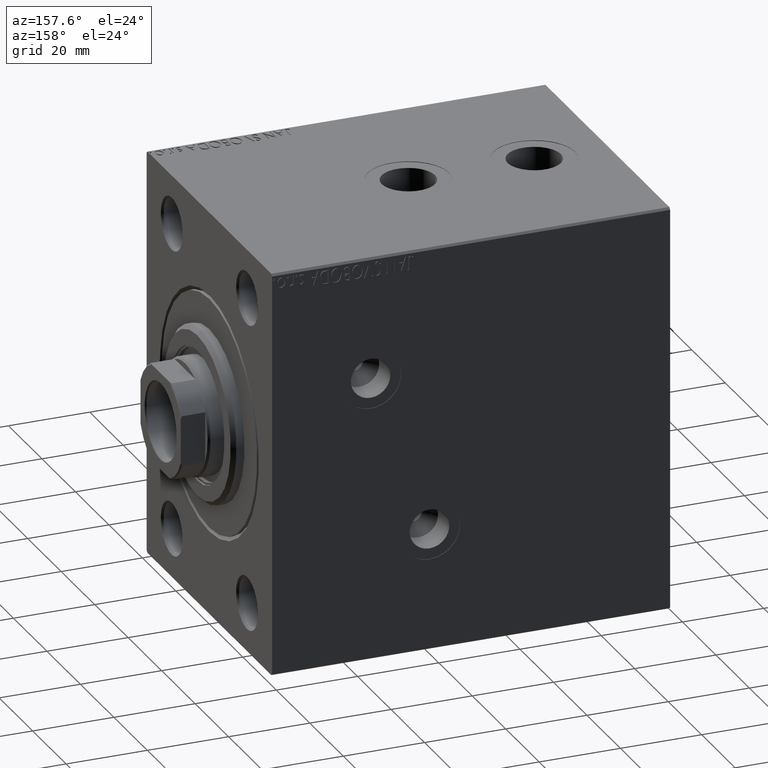
[diagram: clean part render]
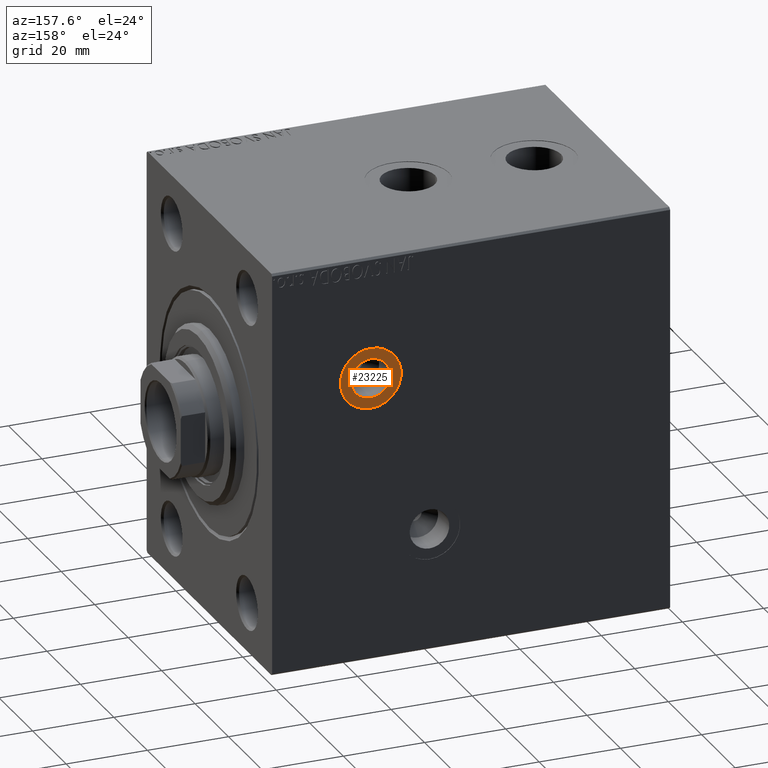
[diagram: same view with one face highlighted and labeled with its STEP entity id]
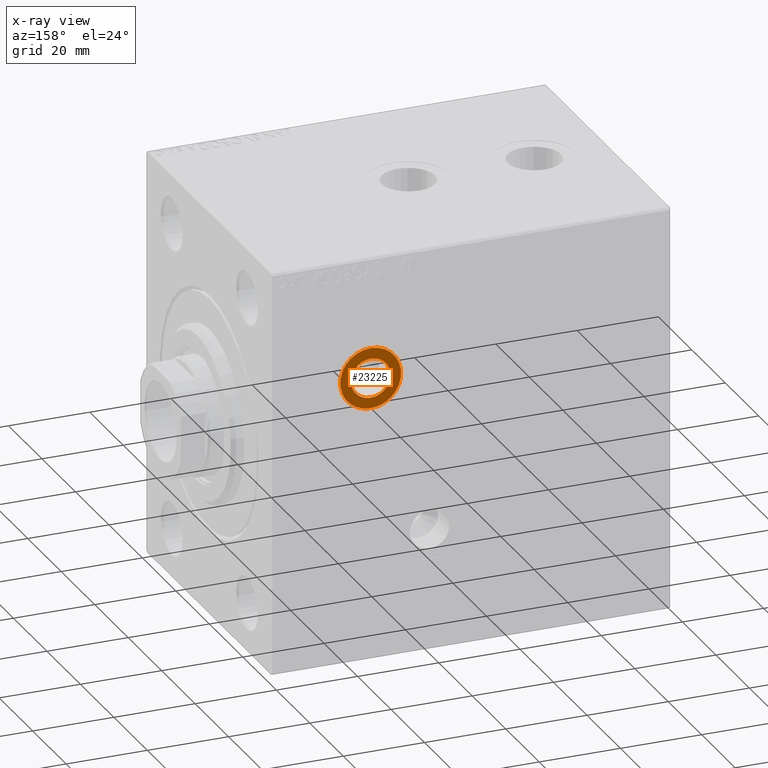
[diagram: x-ray of the same camera — body ghosted, the highlighted face saturated]
A machine part, auxiliary view. The second image highlights one B-rep face of the part: STEP entity #23225.
The next image is the same camera in x-ray: the body ghosted, the highlighted face saturated — about 0% of this face is hidden behind the body in this view.
In plain terms, the highlighted planar face has unit normal (-0, 1, -0).
Its self-contained STEP definition (entity closure, byte-faithful):
#463 = EDGE_LOOP ( 'NONE', ( #27956, #31067 ) ) ;
#1555 = DIRECTION ( 'NONE',  ( 0.000000000000000000, 0.000000000000000000, 1.000000000000000000 ) ) ;
#1837 = ORIENTED_EDGE ( 'NONE', *, *, #44630, .T. ) ;
#2612 = CARTESIAN_POINT ( 'NONE',  ( 24.30000000000000071, 37.39999999999999147, -27.49999999999998579 ) ) ;
#3596 = AXIS2_PLACEMENT_3D ( 'NONE', #35967, #29167, #29608 ) ;
#5732 = AXIS2_PLACEMENT_3D ( 'NONE', #32948, #16323, #1555 ) ;
#5953 = VERTEX_POINT ( 'NONE', #15403 ) ;
#6969 = FACE_BOUND ( 'NONE', #463, .T. ) ;
#9267 = EDGE_LOOP ( 'NONE', ( #14367, #1837 ) ) ;
#9691 = CARTESIAN_POINT ( 'NONE',  ( 24.30000000000000071, 37.39999999999999147, -15.13499999999998558 ) ) ;
#9721 = PLANE ( 'NONE',  #37741 ) ;
#10063 = CIRCLE ( 'NONE', #5732, 7.500000000000000000 ) ;
#14367 = ORIENTED_EDGE ( 'NONE', *, *, #19463, .T. ) ;
#15403 = CARTESIAN_POINT ( 'NONE',  ( 24.30000000000000071, 37.39999999999999147, -12.49999999999998757 ) ) ;
#16323 = DIRECTION ( 'NONE',  ( 0.000000000000000000, 1.000000000000000000, 1.632680918566406793E-16 ) ) ;
#16577 = CIRCLE ( 'NONE', #29676, 7.500000000000000000 ) ;
#17406 = CIRCLE ( 'NONE', #3596, 4.865000000000001101 ) ;
#17431 = DIRECTION ( 'NONE',  ( 0.000000000000000000, -1.632680918566406793E-16, 1.000000000000000000 ) ) ;
#18013 = CIRCLE ( 'NONE', #32615, 4.865000000000001101 ) ;
#19463 = EDGE_CURVE ( 'NONE', #5953, #36895, #16577, .T. ) ;
#23225 = ADVANCED_FACE ( 'NONE', ( #6969, #27458 ), #9721, .T. ) ;
#23809 = CARTESIAN_POINT ( 'NONE',  ( 24.30000000000000071, 37.39999999999999147, -19.99999999999998579 ) ) ;
#24088 = EDGE_CURVE ( 'NONE', #32265, #41749, #17406, .T. ) ;
#24285 = CARTESIAN_POINT ( 'NONE',  ( 24.30000000000000071, 37.39999999999999147, -19.99999999999998579 ) ) ;
#24979 = DIRECTION ( 'NONE',  ( 0.000000000000000000, 0.000000000000000000, 1.000000000000000000 ) ) ;
#27458 = FACE_OUTER_BOUND ( 'NONE', #9267, .T. ) ;
#27681 = DIRECTION ( 'NONE',  ( 0.000000000000000000, 1.000000000000000000, 1.632680918566406793E-16 ) ) ;
#27956 = ORIENTED_EDGE ( 'NONE', *, *, #24088, .F. ) ;
#28165 = DIRECTION ( 'NONE',  ( 0.000000000000000000, 0.000000000000000000, 1.000000000000000000 ) ) ;
#29167 = DIRECTION ( 'NONE',  ( 0.000000000000000000, 1.000000000000000000, 1.632680918566406793E-16 ) ) ;
#29608 = DIRECTION ( 'NONE',  ( 0.000000000000000000, 0.000000000000000000, 1.000000000000000000 ) ) ;
#29676 = AXIS2_PLACEMENT_3D ( 'NONE', #24285, #38617, #28165 ) ;
#31067 = ORIENTED_EDGE ( 'NONE', *, *, #40907, .F. ) ;
#31367 = DIRECTION ( 'NONE',  ( 0.000000000000000000, 1.000000000000000000, 1.632680918566406793E-16 ) ) ;
#31466 = CARTESIAN_POINT ( 'NONE',  ( 24.30000000000000071, 37.39999999999999147, -24.86499999999998778 ) ) ;
#32265 = VERTEX_POINT ( 'NONE', #9691 ) ;
#32615 = AXIS2_PLACEMENT_3D ( 'NONE', #35227, #31367, #24979 ) ;
#32948 = CARTESIAN_POINT ( 'NONE',  ( 24.30000000000000071, 37.39999999999999147, -19.99999999999998579 ) ) ;
#35227 = CARTESIAN_POINT ( 'NONE',  ( 24.30000000000000071, 37.39999999999999147, -19.99999999999998579 ) ) ;
#35967 = CARTESIAN_POINT ( 'NONE',  ( 24.30000000000000071, 37.39999999999999147, -19.99999999999998579 ) ) ;
#36895 = VERTEX_POINT ( 'NONE', #2612 ) ;
#37741 = AXIS2_PLACEMENT_3D ( 'NONE', #23809, #27681, #17431 ) ;
#38617 = DIRECTION ( 'NONE',  ( 0.000000000000000000, 1.000000000000000000, 1.632680918566406793E-16 ) ) ;
#40907 = EDGE_CURVE ( 'NONE', #41749, #32265, #18013, .T. ) ;
#41749 = VERTEX_POINT ( 'NONE', #31466 ) ;
#44630 = EDGE_CURVE ( 'NONE', #36895, #5953, #10063, .T. ) ;